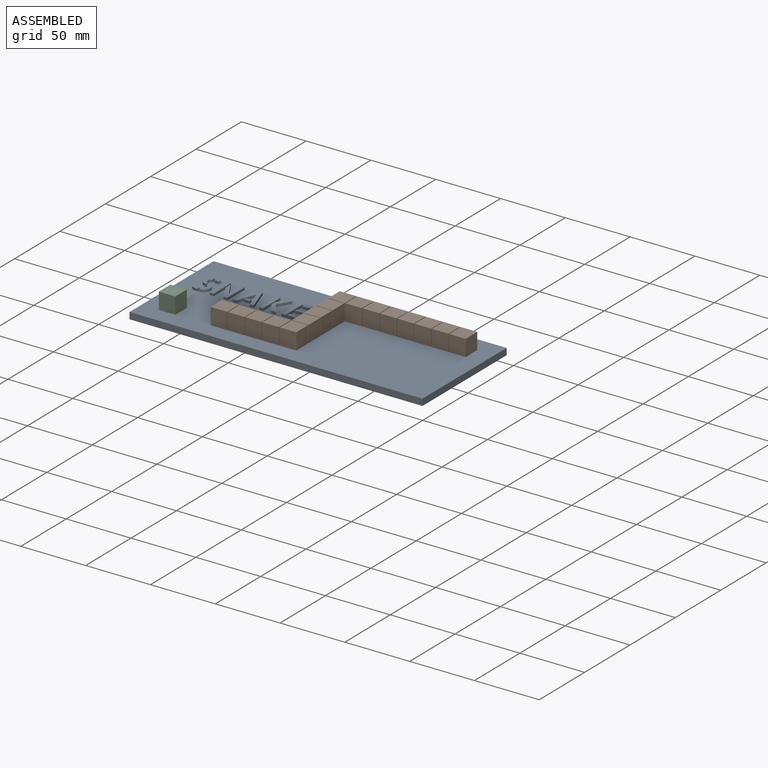
[diagram: assembled view]
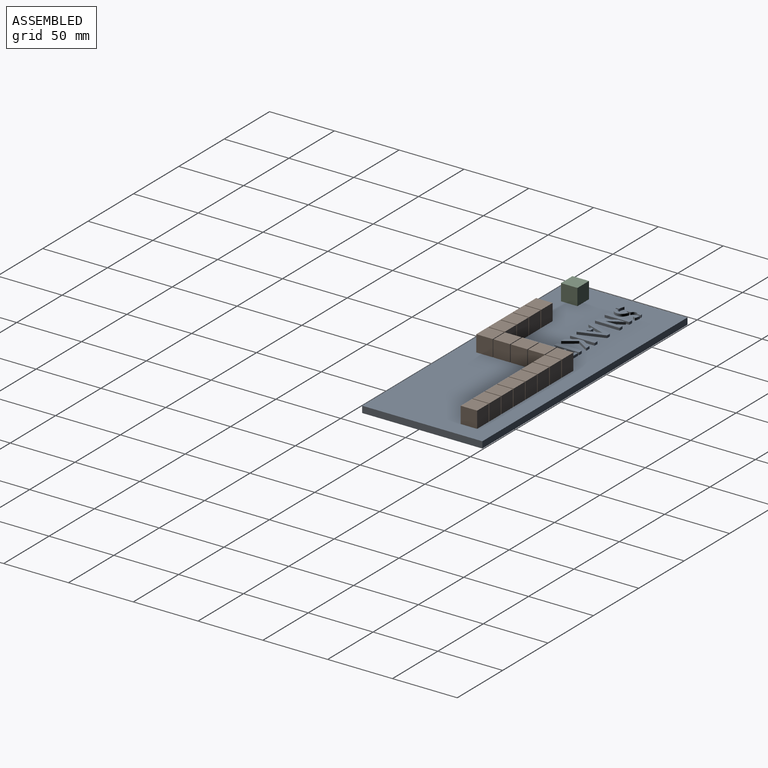
[diagram: assembled view, second angle]
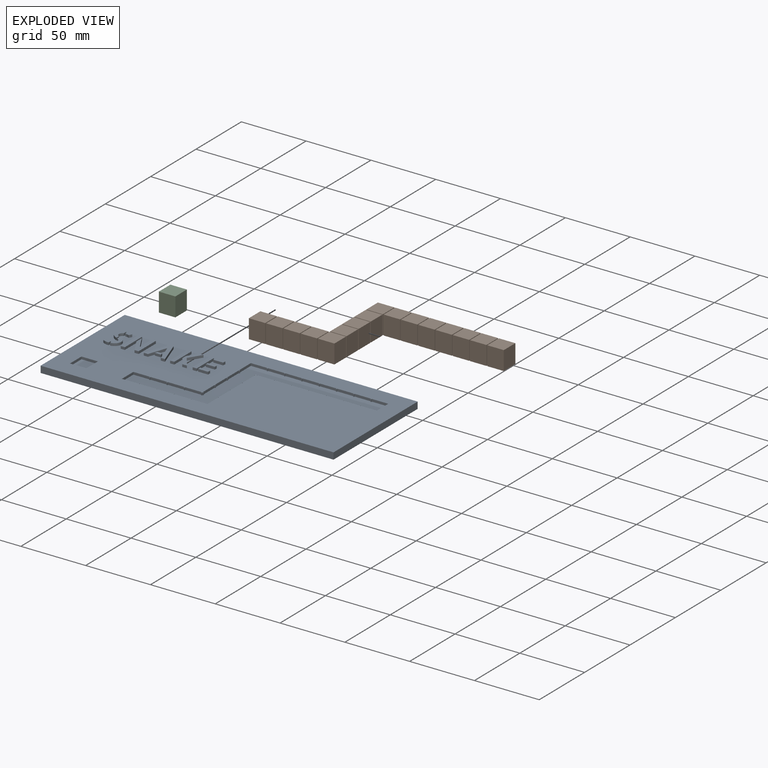
[diagram: exploded view]
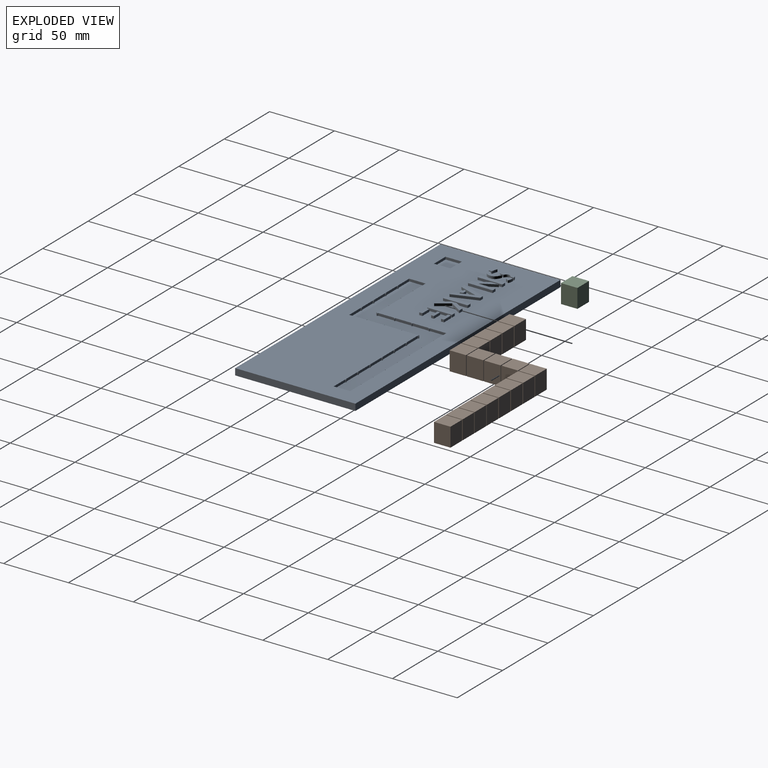
[diagram: exploded view, second angle]
ASSEMBLY  parts=3 mates=7
PART A: 249 faces, bbox 226.1x92.7x7 mm
  f0: plane 226.06x92.71mm, normal (0,0,1), area 17506.9mm2, adj f1,f2,f3,f4,f6,f7,f8,f9
  f1: plane 226.06x5.08mm, normal (0,1,0), area 1148.4mm2, adj f0,f2,f4,f5
  f2: plane 92.71x5.08mm, normal (-1,0,0), area 471mm2, adj f0,f1,f3,f5
  f3: plane 226.06x5.08mm, normal (0,-1,0), area 1148.4mm2, adj f0,f2,f4,f5
  f4: plane 92.71x5.08mm, normal (1,0,0), area 471mm2, adj f0,f1,f3,f5
  f5: plane 226.06x92.71mm, normal (0,0,-1), area 20958mm2, adj f1,f2,f3,f4
  f6: plane 1.91x0.64mm, normal (-1,0,0), area 1.2mm2, adj f0,f7,f129,f130
  f7: plane 1.91x0.64mm, normal (0,1,0), area 1.2mm2, adj f0,f6,f8,f130
  f8: plane 1.91x0.64mm, normal (1,0,0), area 1.2mm2, adj f0,f7,f9,f130
  f9: plane 12.7x1.91mm, normal (0,1,0), area 24.2mm2, adj f0,f8,f10,f130
  f10: plane 12.7x1.91mm, normal (-1,0,0), area 24.2mm2, adj f0,f9,f11,f130
  f11: plane 1.91x0.64mm, normal (0,-1,0), area 1.2mm2, adj f0,f10,f12,f130
  f12: plane 1.91x0.64mm, normal (-1,0,0), area 1.2mm2, adj f0,f11,f13,f130
  f13: plane 1.91x0.64mm, normal (0,1,0), area 1.2mm2, adj f0,f12,f14,f130
  f14: plane 12.7x1.91mm, normal (-1,0,0), area 24.2mm2, adj f0,f13,f15,f130
  f15: plane 1.91x0.64mm, normal (0,-1,0), area 1.2mm2, adj f0,f14,f16,f130
  f16: plane 1.91x0.64mm, normal (-1,0,0), area 1.2mm2, adj f0,f15,f17,f130
  f17: plane 1.91x0.64mm, normal (0,1,0), area 1.2mm2, adj f0,f16,f18,f130
  f18: plane 12.7x1.91mm, normal (-1,0,0), area 24.2mm2, adj f0,f17,f19,f130
  f19: plane 1.91x0.64mm, normal (0,-1,0), area 1.2mm2, adj f0,f18,f20,f130
  f20: plane 1.91x0.64mm, normal (-1,0,0), area 1.2mm2, adj f0,f19,f21,f130
  f21: plane 1.91x0.64mm, normal (0,1,0), area 1.2mm2, adj f0,f20,f22,f130
  f22: plane 12.7x1.91mm, normal (-1,0,0), area 24.2mm2, adj f0,f21,f23,f130
  f23: plane 1.91x0.64mm, normal (0,-1,0), area 1.2mm2, adj f0,f22,f24,f130
  f24: plane 1.91x0.64mm, normal (-1,0,0), area 1.2mm2, adj f0,f23,f25,f130
  f25: plane 1.91x0.64mm, normal (0,1,0), area 1.2mm2, adj f0,f24,f26,f130
  f26: plane 1.91x0.64mm, normal (-1,0,0), area 1.2mm2, adj f0,f25,f27,f130
  f27: plane 1.91x0.64mm, normal (0,1,0), area 1.2mm2, adj f0,f26,f28,f130
  f28: plane 1.91x0.64mm, normal (1,0,0), area 1.2mm2, adj f0,f27,f29,f130
  f29: plane 12.7x1.91mm, normal (0,1,0), area 24.2mm2, adj f0,f28,f30,f130
  f30: plane 1.91x0.64mm, normal (-1,0,0), area 1.2mm2, adj f0,f29,f31,f130
  f31: plane 1.91x0.64mm, normal (0,1,0), area 1.2mm2, adj f0,f30,f32,f130
  f32: plane 1.91x0.64mm, normal (1,0,0), area 1.2mm2, adj f0,f31,f33,f130
  f33: plane 12.7x1.91mm, normal (0,1,0), area 24.2mm2, adj f0,f32,f34,f130
  f34: plane 1.91x0.64mm, normal (-1,0,0), area 1.2mm2, adj f0,f33,f35,f130
  f35: plane 1.91x0.64mm, normal (0,1,0), area 1.2mm2, adj f0,f34,f36,f130
  f36: plane 1.91x0.64mm, normal (1,0,0), area 1.2mm2, adj f0,f35,f37,f130
  f37: plane 12.7x1.91mm, normal (0,1,0), area 24.2mm2, adj f0,f36,f38,f130
  f38: plane 1.91x0.64mm, normal (-1,0,0), area 1.2mm2, adj f0,f37,f39,f130
  f39: plane 1.91x0.64mm, normal (0,1,0), area 1.2mm2, adj f0,f38,f40,f130
  f40: plane 1.91x0.64mm, normal (1,0,0), area 1.2mm2, adj f0,f39,f41,f130
  f41: plane 12.7x1.91mm, normal (0,1,0), area 24.2mm2, adj f0,f40,f42,f130
  f42: plane 1.91x0.64mm, normal (-1,0,0), area 1.2mm2, adj f0,f41,f43,f130
  f43: plane 1.91x0.64mm, normal (0,1,0), area 1.2mm2, adj f0,f42,f44,f130
  f44: plane 1.91x0.64mm, normal (1,0,0), area 1.2mm2, adj f0,f43,f45,f130
  f45: plane 12.7x1.91mm, normal (0,1,0), area 24.2mm2, adj f0,f44,f46,f130
  f46: plane 1.91x0.64mm, normal (-1,0,0), area 1.2mm2, adj f0,f45,f47,f130
  f47: plane 1.91x0.64mm, normal (0,1,0), area 1.2mm2, adj f0,f46,f48,f130
  f48: plane 1.91x0.64mm, normal (1,0,0), area 1.2mm2, adj f0,f47,f49,f130
  f49: plane 12.7x1.91mm, normal (0,1,0), area 24.2mm2, adj f0,f48,f50,f130
  f50: plane 1.91x0.64mm, normal (-1,0,0), area 1.2mm2, adj f0,f49,f51,f130
  f51: plane 1.91x0.64mm, normal (0,1,0), area 1.2mm2, adj f0,f50,f52,f130
  f52: plane 1.91x0.64mm, normal (1,0,0), area 1.2mm2, adj f0,f51,f53,f130
  f53: plane 12.7x1.91mm, normal (0,1,0), area 24.2mm2, adj f0,f52,f54,f130
  f54: plane 12.7x1.91mm, normal (-1,0,0), area 24.2mm2, adj f0,f53,f55,f130
  f55: plane 12.7x1.91mm, normal (0,-1,0), area 24.2mm2, adj f0,f54,f56,f130
  f56: plane 1.91x0.64mm, normal (1,0,0), area 1.2mm2, adj f0,f55,f57,f130
  f57: plane 1.91x0.64mm, normal (0,-1,0), area 1.2mm2, adj f0,f56,f58,f130
  f58: plane 1.91x0.64mm, normal (-1,0,0), area 1.2mm2, adj f0,f57,f59,f130
  f59: plane 12.7x1.91mm, normal (0,-1,0), area 24.2mm2, adj f0,f58,f60,f130
  f60: plane 1.91x0.64mm, normal (1,0,0), area 1.2mm2, adj f0,f59,f61,f130
  f61: plane 1.91x0.64mm, normal (0,-1,0), area 1.2mm2, adj f0,f60,f62,f130
  f62: plane 1.91x0.64mm, normal (-1,0,0), area 1.2mm2, adj f0,f61,f63,f130
  f63: plane 12.7x1.91mm, normal (0,-1,0), area 24.2mm2, adj f0,f62,f64,f130
  f64: plane 1.91x0.64mm, normal (1,0,0), area 1.2mm2, adj f0,f63,f65,f130
  f65: plane 1.91x0.64mm, normal (0,-1,0), area 1.2mm2, adj f0,f64,f66,f130
  f66: plane 1.91x0.64mm, normal (-1,0,0), area 1.2mm2, adj f0,f65,f67,f130
  f67: plane 12.7x1.91mm, normal (0,-1,0), area 24.2mm2, adj f0,f66,f68,f130
  f68: plane 1.91x0.64mm, normal (1,0,0), area 1.2mm2, adj f0,f67,f69,f130
  f69: plane 1.91x0.64mm, normal (0,-1,0), area 1.2mm2, adj f0,f68,f70,f130
  f70: plane 1.91x0.64mm, normal (-1,0,0), area 1.2mm2, adj f0,f69,f71,f130
  f71: plane 12.7x1.91mm, normal (0,-1,0), area 24.2mm2, adj f0,f70,f72,f130
  f72: plane 1.91x0.64mm, normal (1,0,0), area 1.2mm2, adj f0,f71,f73,f130
  f73: plane 1.91x0.64mm, normal (0,-1,0), area 1.2mm2, adj f0,f72,f74,f130
  f74: plane 1.91x0.64mm, normal (-1,0,0), area 1.2mm2, adj f0,f73,f75,f130
  f75: plane 12.7x1.91mm, normal (0,-1,0), area 24.2mm2, adj f0,f74,f76,f130
  f76: plane 1.91x0.64mm, normal (1,0,0), area 1.2mm2, adj f0,f75,f77,f130
  f77: plane 1.91x0.64mm, normal (0,-1,0), area 1.2mm2, adj f0,f76,f78,f130
  f78: plane 1.91x0.64mm, normal (-1,0,0), area 1.2mm2, adj f0,f77,f79,f130
  f79: plane 12.7x1.91mm, normal (0,-1,0), area 24.2mm2, adj f0,f78,f80,f130
  f80: plane 1.91x0.64mm, normal (1,0,0), area 1.2mm2, adj f0,f79,f81,f130
  f81: plane 1.91x0.64mm, normal (0,-1,0), area 1.2mm2, adj f0,f80,f82,f130
  f82: plane 1.91x0.64mm, normal (-1,0,0), area 1.2mm2, adj f0,f81,f83,f130
  f83: plane 12.7x1.91mm, normal (0,-1,0), area 24.2mm2, adj f0,f82,f84,f130
  f84: plane 12.7x1.91mm, normal (1,0,0), area 24.2mm2, adj f0,f83,f85,f130
  f85: plane 1.91x0.64mm, normal (0,1,0), area 1.2mm2, adj f0,f84,f86,f130
  f86: plane 1.91x0.64mm, normal (1,0,0), area 1.2mm2, adj f0,f85,f87,f130
  f87: plane 1.91x0.64mm, normal (0,-1,0), area 1.2mm2, adj f0,f86,f88,f130
  f88: plane 12.7x1.91mm, normal (1,0,0), area 24.2mm2, adj f0,f87,f89,f130
  f89: plane 1.91x0.64mm, normal (0,1,0), area 1.2mm2, adj f0,f88,f90,f130
  f90: plane 1.91x0.64mm, normal (1,0,0), area 1.2mm2, adj f0,f89,f91,f130
  f91: plane 1.91x0.64mm, normal (0,-1,0), area 1.2mm2, adj f0,f90,f92,f130
  f92: plane 12.7x1.91mm, normal (1,0,0), area 24.2mm2, adj f0,f91,f93,f130
  f93: plane 1.91x0.64mm, normal (0,1,0), area 1.2mm2, adj f0,f92,f94,f130
  f94: plane 1.91x0.64mm, normal (1,0,0), area 1.2mm2, adj f0,f93,f95,f130
  f95: plane 1.91x0.64mm, normal (0,-1,0), area 1.2mm2, adj f0,f94,f96,f130
  f96: plane 12.7x1.91mm, normal (1,0,0), area 24.2mm2, adj f0,f95,f97,f130
  f97: plane 1.91x0.64mm, normal (0,1,0), area 1.2mm2, adj f0,f96,f98,f130
  f98: plane 1.91x0.64mm, normal (1,0,0), area 1.2mm2, adj f0,f97,f99,f130
  f99: plane 1.91x0.64mm, normal (0,-1,0), area 1.2mm2, adj f0,f98,f100,f130
  f100: plane 1.91x0.64mm, normal (1,0,0), area 1.2mm2, adj f0,f99,f101,f130
  f101: plane 1.91x0.64mm, normal (0,-1,0), area 1.2mm2, adj f0,f100,f102,f130
  f102: plane 1.91x0.64mm, normal (-1,0,0), area 1.2mm2, adj f0,f101,f103,f130
  f103: plane 12.7x1.91mm, normal (0,-1,0), area 24.2mm2, adj f0,f102,f104,f130
  f104: plane 1.91x0.64mm, normal (1,0,0), area 1.2mm2, adj f0,f103,f105,f130
  f105: plane 1.91x0.64mm, normal (0,-1,0), area 1.2mm2, adj f0,f104,f106,f130
  f106: plane 1.91x0.64mm, normal (-1,0,0), area 1.2mm2, adj f0,f105,f107,f130
  f107: plane 12.7x1.91mm, normal (0,-1,0), area 24.2mm2, adj f0,f106,f108,f130
  f108: plane 1.91x0.64mm, normal (1,0,0), area 1.2mm2, adj f0,f107,f109,f130
  f109: plane 1.91x0.64mm, normal (0,-1,0), area 1.2mm2, adj f0,f108,f110,f130
  f110: plane 1.91x0.64mm, normal (-1,0,0), area 1.2mm2, adj f0,f109,f111,f130
  f111: plane 12.7x1.91mm, normal (0,-1,0), area 24.2mm2, adj f0,f110,f112,f130
  f112: plane 1.91x0.64mm, normal (1,0,0), area 1.2mm2, adj f0,f111,f113,f130
  f113: plane 1.91x0.64mm, normal (0,-1,0), area 1.2mm2, adj f0,f112,f114,f130
  f114: plane 1.91x0.64mm, normal (-1,0,0), area 1.2mm2, adj f0,f113,f115,f130
  f115: plane 12.7x1.91mm, normal (0,-1,0), area 24.2mm2, adj f0,f114,f116,f130
  f116: plane 12.7x1.91mm, normal (1,0,0), area 24.2mm2, adj f0,f115,f117,f130
  f117: plane 12.7x1.91mm, normal (0,1,0), area 24.2mm2, adj f0,f116,f118,f130
  f118: plane 1.91x0.64mm, normal (-1,0,0), area 1.2mm2, adj f0,f117,f119,f130
  f119: plane 1.91x0.64mm, normal (0,1,0), area 1.2mm2, adj f0,f118,f120,f130
  f120: plane 1.91x0.64mm, normal (1,0,0), area 1.2mm2, adj f0,f119,f121,f130
  f121: plane 12.7x1.91mm, normal (0,1,0), area 24.2mm2, adj f0,f120,f122,f130
  f122: plane 1.91x0.64mm, normal (-1,0,0), area 1.2mm2, adj f0,f121,f123,f130
  f123: plane 1.91x0.64mm, normal (0,1,0), area 1.2mm2, adj f0,f122,f124,f130
  f124: plane 1.91x0.64mm, normal (1,0,0), area 1.2mm2, adj f0,f123,f125,f130
  f125: plane 12.7x1.91mm, normal (0,1,0), area 24.2mm2, adj f0,f124,f126,f130
  f126: plane 1.91x0.64mm, normal (-1,0,0), area 1.2mm2, adj f0,f125,f127,f130
  f127: plane 1.91x0.64mm, normal (0,1,0), area 1.2mm2, adj f0,f126,f128,f130
  f128: plane 1.91x0.64mm, normal (1,0,0), area 1.2mm2, adj f0,f127,f129,f130
  f129: plane 12.7x1.91mm, normal (0,1,0), area 24.2mm2, adj f0,f6,f128,f130
  f130: plane 159.39x66.04mm, normal (0,0,1), area 2689.5mm2, adj f6,f7,f8,f9,f10,f11,f12,f13
  f131: plane 12.7x1.91mm, normal (0,1,0), area 24.2mm2, adj f0,f132,f134,f135
  f132: plane 12.7x1.91mm, normal (-1,0,0), area 24.2mm2, adj f0,f131,f133,f135
  f133: plane 12.7x1.91mm, normal (0,-1,0), area 24.2mm2, adj f0,f132,f134,f135
  f134: plane 12.7x1.91mm, normal (1,0,0), area 24.2mm2, adj f0,f131,f133,f135
  f135: plane 12.7x12.7mm, normal (0,0,1), area 161.3mm2, adj f131,f132,f133,f134
  f136: extruded ~1.91x0.26mm, area 0.6mm2, adj f0,f137,f146,f147
  f137: extruded ~1.91x0.58mm, area 1.3mm2, adj f0,f136,f138,f147
  f138: extruded ~1.91x0.75mm, area 1.6mm2, adj f0,f137,f139,f147
  f139: extruded ~1.91x0.74mm, area 1.6mm2, adj f0,f138,f140,f147
  f140: extruded ~1.91x1.9mm, area 3.9mm2, adj f0,f139,f141,f147
  f141: extruded ~2.31x1.91mm, area 4.4mm2, adj f0,f140,f142,f147
  f142: plane 2.61x1.91mm, normal (-1,0,0), area 5mm2, adj f0,f141,f143,f147
  f143: extruded ~1.91x1.32mm, area 2.5mm2, adj f0,f142,f144,f147
  f144: extruded ~1.91x0.85mm, area 1.7mm2, adj f0,f143,f145,f147
  f145: extruded ~1.91x0.52mm, area 1.1mm2, adj f0,f144,f146,f147
  f146: extruded ~1.91x0.31mm, area 0.7mm2, adj f0,f136,f145,f147
  f147: plane 4.21x3.25mm, normal (0,0,1), area 9.6mm2, adj f136,f137,f138,f139,f140,f141,f142,f143
  f148: extruded ~2.04x1.91mm, area 4mm2, adj f0,f149,f161,f162
  f149: extruded ~1.91x1.5mm, area 3.6mm2, adj f0,f148,f150,f162
  f150: extruded ~1.91x1.55mm, area 3.7mm2, adj f0,f149,f151,f162
  f151: extruded ~1.91x1.71mm, area 3.7mm2, adj f0,f150,f152,f162
  f152: plane 2.95x1.91mm, normal (1,0,0), area 5.6mm2, adj f0,f151,f153,f162
  f153: extruded ~1.91x1.37mm, area 3.3mm2, adj f0,f152,f154,f162
  f154: extruded ~1.91x1.63mm, area 3.3mm2, adj f0,f153,f155,f162
  f155: extruded ~1.91x1.43mm, area 3mm2, adj f0,f154,f156,f162
  f156: extruded ~1.91x1.37mm, area 3.3mm2, adj f0,f155,f157,f162
  f157: plane 2.72x1.91mm, normal (1,0,0), area 5.2mm2, adj f0,f156,f158,f162
  f158: extruded ~1.91x1.88mm, area 3.7mm2, adj f0,f157,f159,f162
  f159: extruded ~1.91x1.55mm, area 3.6mm2, adj f0,f158,f160,f162
  f160: extruded ~1.91x1.59mm, area 3.6mm2, adj f0,f159,f161,f162
  f161: extruded ~2.04x1.91mm, area 4mm2, adj f0,f148,f160,f162
  f162: plane 10.8x4.86mm, normal (0,0,1), area 31.8mm2, adj f148,f149,f150,f151,f152,f153,f154,f155
  f163: plane 2.22x1.91mm, normal (-0.97,0.24,0), area 4.4mm2, adj f0,f164,f174,f175
  f164: extruded ~1.91x1.05mm, area 2.4mm2, adj f0,f163,f165,f175
  f165: extruded ~1.91x1.28mm, area 2.6mm2, adj f0,f164,f166,f175
  f166: extruded ~1.91x1.33mm, area 2.6mm2, adj f0,f165,f167,f175
  f167: extruded ~1.91x1.28mm, area 2.4mm2, adj f0,f166,f168,f175
  f168: plane 1.91x0.05mm, normal (0,-1,0), area 0.1mm2, adj f0,f167,f169,f175
  f169: plane 2.46x1.91mm, normal (1,0,0), area 4.7mm2, adj f0,f168,f170,f175
  f170: plane 1.91x0.08mm, normal (0,1,0), area 0.1mm2, adj f0,f169,f171,f175
  f171: extruded ~1.91x1.11mm, area 2.1mm2, adj f0,f170,f172,f175
  f172: extruded ~1.91x1.19mm, area 2.3mm2, adj f0,f171,f173,f175
  f173: extruded ~1.91x1.15mm, area 2.3mm2, adj f0,f172,f174,f175
  f174: extruded ~1.91x0.92mm, area 1.9mm2, adj f0,f163,f173,f175
  f175: plane 4.99x3.59mm, normal (0,0,1), area 12.2mm2, adj f163,f164,f165,f166,f167,f168,f169,f170
  f176: plane 3.03x1.91mm, normal (-1,0,0), area 5.8mm2, adj f0,f177,f188,f189
  f177: extruded ~1.91x1.52mm, area 3.6mm2, adj f0,f176,f178,f189
  f178: extruded ~1.91x1.5mm, area 3.2mm2, adj f0,f177,f179,f189
  f179: extruded ~2.82x2.12mm, area 7.3mm2, adj f0,f178,f180,f189
  f180: plane 2.48x1.91mm, normal (-1,0,0), area 4.7mm2, adj f0,f179,f181,f189
  f181: extruded ~2.12x1.91mm, area 4.2mm2, adj f0,f180,f182,f189
  f182: extruded ~1.91x1.56mm, area 3.8mm2, adj f0,f181,f183,f189
  f183: extruded ~1.91x1.59mm, area 3.6mm2, adj f0,f182,f184,f189
  f184: extruded ~1.91x1.81mm, area 3.5mm2, adj f0,f183,f185,f189
  f185: extruded ~2.25x1.91mm, area 4.4mm2, adj f0,f184,f186,f189
  f186: extruded ~1.91x1.54mm, area 3.7mm2, adj f0,f185,f187,f189
  f187: extruded ~1.91x1.61mm, area 3.7mm2, adj f0,f186,f188,f189
  f188: extruded ~1.91x1.74mm, area 3.7mm2, adj f0,f176,f187,f189
  f189: plane 10.93x5.01mm, normal (0,0,1), area 32.3mm2, adj f176,f177,f178,f179,f180,f181,f182,f183
  f190: plane 13.13x1.91mm, normal (-1,0,0), area 25mm2, adj f0,f191,f196,f197
  f191: plane 11.29x6.41mm, normal (0.87,0.49,0), area 24.7mm2, adj f0,f190,f192,f197
  f192: plane 5.95x1.91mm, normal (-1,0,0), area 11.3mm2, adj f0,f191,f193,f197
  f193: plane 11.27x6.41mm, normal (-0.87,-0.49,0), area 24.7mm2, adj f0,f192,f194,f197
  f194: plane 3.15x1.91mm, normal (0,-1,0), area 6mm2, adj f0,f193,f195,f197
  f195: plane 19.04x1.91mm, normal (1,0,0), area 36.3mm2, adj f0,f194,f196,f197
  f196: plane 3.15x1.91mm, normal (0,1,0), area 6mm2, adj f0,f190,f195,f197
  f197: plane 19.04x9.56mm, normal (0,0,1), area 98mm2, adj f190,f191,f192,f193,f194,f195,f196
  f198: plane 3.15x1.91mm, normal (0,-1,0), area 6mm2, adj f0,f199,f201,f202
  f199: plane 19.04x1.91mm, normal (1,0,0), area 36.3mm2, adj f0,f198,f200,f202
  f200: plane 3.15x1.91mm, normal (0,1,0), area 6mm2, adj f0,f199,f201,f202
  f201: plane 19.04x1.91mm, normal (-1,0,0), area 36.3mm2, adj f0,f198,f200,f202
  f202: plane 19.04x3.15mm, normal (0,0,1), area 60.1mm2, adj f198,f199,f200,f201
  f203: plane 19.02x6.61mm, normal (0.94,0.33,0), area 38.4mm2, adj f0,f204,f209,f210
  f204: plane 3.08x1.91mm, normal (0,1,0), area 5.9mm2, adj f0,f203,f205,f210
  f205: plane 19.02x6.66mm, normal (-0.94,0.33,0), area 38.4mm2, adj f0,f204,f206,f210
  f206: plane 3.23x1.91mm, normal (0,-1,0), area 6.2mm2, adj f0,f205,f207,f210
  f207: plane 14.26x4.99mm, normal (0.94,-0.33,0), area 28.8mm2, adj f0,f206,f208,f210
  f208: plane 14.26x4.94mm, normal (-0.95,-0.33,0), area 28.8mm2, adj f0,f207,f209,f210
  f209: plane 3.2x1.91mm, normal (0,-1,0), area 6.1mm2, adj f0,f203,f208,f210
  f210: plane 19.02x16.35mm, normal (0,0,1), area 114mm2, adj f203,f204,f205,f206,f207,f208,f209
  f211: plane 3.46x1.91mm, normal (0,1,0), area 6.6mm2, adj f0,f212,f214,f215
  f212: plane 2.1x1.91mm, normal (-0.95,0.33,0), area 4.2mm2, adj f0,f211,f213,f215
  f213: plane 4.94x1.91mm, normal (0,-1,0), area 9.4mm2, adj f0,f212,f214,f215
  f214: plane 2.1x1.91mm, normal (0.94,0.34,0), area 4.2mm2, adj f0,f211,f213,f215
  f215: plane 4.94x2.1mm, normal (0,0,1), area 8.8mm2, adj f211,f212,f213,f214
  f216: plane 3.15x1.91mm, normal (0,-1,0), area 6mm2, adj f0,f217,f219,f220
  f217: plane 19.04x1.91mm, normal (1,0,0), area 36.3mm2, adj f0,f216,f218,f220
  f218: plane 3.15x1.91mm, normal (0,1,0), area 6mm2, adj f0,f217,f219,f220
  f219: plane 19.04x1.91mm, normal (-1,0,0), area 36.3mm2, adj f0,f216,f218,f220
  f220: plane 19.04x3.15mm, normal (0,0,1), area 60.1mm2, adj f216,f217,f218,f219
  f221: plane 9.79x6.1mm, normal (0.85,-0.53,0), area 22mm2, adj f0,f222,f227,f228
  f222: plane 3.54x1.91mm, normal (0,1,0), area 6.7mm2, adj f0,f221,f223,f228
  f223: plane 7.78x4.63mm, normal (-0.86,0.51,0), area 17.2mm2, adj f0,f222,f224,f228
  f224: plane 3.77x1.91mm, normal (-1,0,0), area 7.2mm2, adj f0,f223,f225,f228
  f225: plane 7.5x5.09mm, normal (-0.83,-0.56,0), area 17.3mm2, adj f0,f224,f226,f228
  f226: plane 3.59x1.91mm, normal (0,-1,0), area 6.8mm2, adj f0,f225,f227,f228
  f227: plane 9.25x6.61mm, normal (0.81,0.58,0), area 21.7mm2, adj f0,f221,f226,f228
  f228: plane 19.04x8.68mm, normal (0,0,1), area 62.7mm2, adj f221,f222,f223,f224,f225,f226,f227
  f229: plane 19.04x1.91mm, normal (-1,0,0), area 36.3mm2, adj f0,f230,f232,f233
  f230: plane 3.15x1.91mm, normal (0,-1,0), area 6mm2, adj f0,f229,f231,f233
  f231: plane 19.04x1.91mm, normal (1,0,0), area 36.3mm2, adj f0,f230,f232,f233
  f232: plane 3.15x1.91mm, normal (0,1,0), area 6mm2, adj f0,f229,f231,f233
  f233: plane 19.04x3.15mm, normal (0,0,1), area 60mm2, adj f229,f230,f231,f232
  f234: plane 2.12x1.91mm, normal (1,0,0), area 4mm2, adj f0,f235,f237,f238
  f235: plane 6.9x1.91mm, normal (0,1,0), area 13.1mm2, adj f0,f234,f236,f238
  f236: plane 2.12x1.91mm, normal (-1,0,0), area 4mm2, adj f0,f235,f237,f238
  f237: plane 6.9x1.91mm, normal (0,-1,0), area 13.1mm2, adj f0,f234,f236,f238
  f238: plane 6.9x2.12mm, normal (0,0,1), area 14.6mm2, adj f234,f235,f236,f237
  f239: plane 2.35x1.91mm, normal (-1,0,0), area 4.5mm2, adj f0,f240,f242,f243
  f240: plane 7.7x1.91mm, normal (0,-1,0), area 14.7mm2, adj f0,f239,f241,f243
  f241: plane 2.35x1.91mm, normal (1,0,0), area 4.5mm2, adj f0,f240,f242,f243
  f242: plane 7.7x1.91mm, normal (0,1,0), area 14.7mm2, adj f0,f239,f241,f243
  f243: plane 7.7x2.35mm, normal (0,0,1), area 18.1mm2, adj f239,f240,f241,f242
  f244: plane 7.7x1.91mm, normal (0,1,0), area 14.7mm2, adj f0,f245,f247,f248
  f245: plane 2.35x1.91mm, normal (-1,0,0), area 4.5mm2, adj f0,f244,f246,f248
  f246: plane 7.7x1.91mm, normal (0,-1,0), area 14.7mm2, adj f0,f245,f247,f248
  f247: plane 2.35x1.91mm, normal (1,0,0), area 4.5mm2, adj f0,f244,f246,f248
  f248: plane 7.7x2.35mm, normal (0,0,1), area 18.1mm2, adj f244,f245,f246,f247
PART B: 126 faces, bbox 159.4x66x14.6 mm
  f0: plane 14.61x12.7mm, normal (1,0,0), area 25.8mm2, adj f1,f78,f79,f93,f94,f120,f122
  f1: plane 13.97x0.64mm, normal (0,-1,0), area 8.9mm2, adj f0,f2,f94,f120
  f2: plane 14.61x12.7mm, normal (-1,0,0), area 25.8mm2, adj f1,f3,f77,f78,f94,f120,f124
  f3: plane 14.61x12.7mm, normal (0,-1,0), area 185.5mm2, adj f2,f4,f94,f124
  f4: plane 14.61x12.7mm, normal (1,0,0), area 25.8mm2, adj f3,f5,f76,f77,f94,f105,f124
  f5: plane 13.97x0.64mm, normal (0,-1,0), area 8.9mm2, adj f4,f6,f94,f105
  f6: plane 14.61x12.7mm, normal (-1,0,0), area 25.8mm2, adj f5,f7,f9,f76,f94,f105,f118
  f7: plane 14.61x12.7mm, normal (0,-1,0), area 185.5mm2, adj f6,f8,f94,f118
  f8: plane 14.61x12.7mm, normal (1,0,0), area 185.5mm2, adj f7,f9,f94,f118
  f9: plane 14.61x12.7mm, normal (0,1,0), area 25.8mm2, adj f6,f8,f10,f75,f94,f106,f118
  f10: plane 13.97x0.64mm, normal (1,0,0), area 8.9mm2, adj f9,f11,f94,f106
  f11: plane 14.61x12.7mm, normal (0,-1,0), area 25.8mm2, adj f10,f12,f74,f75,f94,f106,f117
  f12: plane 14.61x12.7mm, normal (1,0,0), area 185.5mm2, adj f11,f13,f94,f117
  f13: plane 14.61x12.7mm, normal (0,1,0), area 25.8mm2, adj f12,f14,f73,f74,f94,f107,f117
  f14: plane 13.97x0.64mm, normal (1,0,0), area 8.9mm2, adj f13,f15,f94,f107
  f15: plane 14.61x12.7mm, normal (0,-1,0), area 25.8mm2, adj f14,f16,f72,f73,f94,f107,f113
  f16: plane 14.61x12.7mm, normal (1,0,0), area 185.5mm2, adj f15,f17,f94,f113
  f17: plane 14.61x12.7mm, normal (0,1,0), area 25.8mm2, adj f16,f18,f71,f72,f94,f113,f114
  f18: plane 13.97x0.64mm, normal (1,0,0), area 8.9mm2, adj f17,f19,f94,f114
  f19: plane 14.61x12.7mm, normal (0,-1,0), area 25.8mm2, adj f18,f20,f70,f71,f94,f112,f114
  f20: plane 14.61x12.7mm, normal (1,0,0), area 185.5mm2, adj f19,f69,f94,f112
  f21: plane 13.97x0.64mm, normal (1,0,0), area 8.9mm2, adj f22,f69,f94,f115
  f22: plane 14.61x12.7mm, normal (0,-1,0), area 25.8mm2, adj f21,f23,f67,f68,f94,f111,f115
  f23: plane 14.61x12.7mm, normal (1,0,0), area 25.8mm2, adj f22,f24,f65,f66,f94,f110,f111
  f24: plane 13.97x0.64mm, normal (0,-1,0), area 8.9mm2, adj f23,f25,f94,f110
  f25: plane 14.61x12.7mm, normal (-1,0,0), area 25.8mm2, adj f24,f26,f64,f65,f94,f109,f110
  f26: plane 14.61x12.7mm, normal (0,-1,0), area 185.5mm2, adj f25,f27,f94,f109
  f27: plane 14.61x12.7mm, normal (1,0,0), area 25.8mm2, adj f26,f28,f63,f64,f94,f108,f109
  f28: plane 13.97x0.64mm, normal (0,-1,0), area 8.9mm2, adj f27,f29,f94,f108
  f29: plane 14.61x12.7mm, normal (-1,0,0), area 25.8mm2, adj f28,f30,f62,f63,f94,f108,f116
  f30: plane 14.61x12.7mm, normal (0,-1,0), area 185.5mm2, adj f29,f31,f94,f116
  f31: plane 14.61x12.7mm, normal (1,0,0), area 25.8mm2, adj f30,f32,f61,f62,f94,f95,f116
  f32: plane 13.97x0.64mm, normal (0,-1,0), area 8.9mm2, adj f31,f33,f94,f95
  f33: plane 14.61x12.7mm, normal (-1,0,0), area 25.8mm2, adj f32,f34,f60,f61,f94,f95,f102
  f34: plane 14.61x12.7mm, normal (0,-1,0), area 185.5mm2, adj f33,f35,f94,f102
  f35: plane 14.61x12.7mm, normal (1,0,0), area 25.8mm2, adj f34,f36,f59,f60,f94,f102,f103
  f36: plane 13.97x0.64mm, normal (0,-1,0), area 8.9mm2, adj f35,f37,f94,f103
  f37: plane 14.61x12.7mm, normal (-1,0,0), area 25.8mm2, adj f36,f38,f58,f59,f94,f103,f104
  f38: plane 14.61x12.7mm, normal (0,-1,0), area 185.5mm2, adj f37,f39,f94,f104
  f39: plane 14.61x12.7mm, normal (1,0,0), area 25.8mm2, adj f38,f40,f57,f58,f94,f96,f104
  f40: plane 13.97x0.64mm, normal (0,-1,0), area 8.9mm2, adj f39,f41,f94,f96
  f41: plane 14.61x12.7mm, normal (-1,0,0), area 25.8mm2, adj f40,f42,f56,f57,f94,f96,f100
  f42: plane 14.61x12.7mm, normal (0,-1,0), area 185.5mm2, adj f41,f43,f94,f100
  f43: plane 14.61x12.7mm, normal (1,0,0), area 25.8mm2, adj f42,f44,f55,f56,f94,f98,f100
  f44: plane 13.97x0.64mm, normal (0,-1,0), area 8.9mm2, adj f43,f45,f94,f98
  f45: plane 14.61x12.7mm, normal (-1,0,0), area 25.8mm2, adj f44,f46,f54,f55,f94,f98,f99
  f46: plane 14.61x12.7mm, normal (0,-1,0), area 185.5mm2, adj f45,f47,f94,f99
  f47: plane 14.61x12.7mm, normal (1,0,0), area 25.8mm2, adj f46,f48,f53,f54,f94,f97,f99
  f48: plane 13.97x0.64mm, normal (0,-1,0), area 8.9mm2, adj f47,f49,f94,f97
  f49: plane 14.61x12.7mm, normal (-1,0,0), area 25.8mm2, adj f48,f50,f52,f53,f94,f97,f101
  f50: plane 14.61x12.7mm, normal (0,-1,0), area 185.5mm2, adj f49,f51,f94,f101
  f51: plane 14.61x12.7mm, normal (1,0,0), area 185.5mm2, adj f50,f52,f94,f101
  f52: plane 14.61x12.7mm, normal (0,1,0), area 185.5mm2, adj f49,f51,f94,f101
  f53: plane 13.97x0.64mm, normal (0,1,0), area 8.9mm2, adj f47,f49,f94,f97
  f54: plane 14.61x12.7mm, normal (0,1,0), area 185.5mm2, adj f45,f47,f94,f99
  f55: plane 13.97x0.64mm, normal (0,1,0), area 8.9mm2, adj f43,f45,f94,f98
  f56: plane 14.61x12.7mm, normal (0,1,0), area 185.5mm2, adj f41,f43,f94,f100
  f57: plane 13.97x0.64mm, normal (0,1,0), area 8.9mm2, adj f39,f41,f94,f96
  f58: plane 14.61x12.7mm, normal (0,1,0), area 185.5mm2, adj f37,f39,f94,f104
  f59: plane 13.97x0.64mm, normal (0,1,0), area 8.9mm2, adj f35,f37,f94,f103
  f60: plane 14.61x12.7mm, normal (0,1,0), area 185.5mm2, adj f33,f35,f94,f102
  f61: plane 13.97x0.64mm, normal (0,1,0), area 8.9mm2, adj f31,f33,f94,f95
  f62: plane 14.61x12.7mm, normal (0,1,0), area 185.5mm2, adj f29,f31,f94,f116
  f63: plane 13.97x0.64mm, normal (0,1,0), area 8.9mm2, adj f27,f29,f94,f108
  f64: plane 14.61x12.7mm, normal (0,1,0), area 185.5mm2, adj f25,f27,f94,f109
  f65: plane 13.97x0.64mm, normal (0,1,0), area 8.9mm2, adj f23,f25,f94,f110
  f66: plane 14.61x12.7mm, normal (0,1,0), area 185.5mm2, adj f23,f67,f94,f111
  f67: plane 14.61x12.7mm, normal (-1,0,0), area 185.5mm2, adj f22,f66,f94,f111
  f68: plane 13.97x0.64mm, normal (-1,0,0), area 8.9mm2, adj f22,f69,f94,f115
  f69: plane 14.61x12.7mm, normal (0,1,0), area 25.8mm2, adj f20,f21,f68,f70,f94,f112,f115
  f70: plane 14.61x12.7mm, normal (-1,0,0), area 185.5mm2, adj f19,f69,f94,f112
  f71: plane 13.97x0.64mm, normal (-1,0,0), area 8.9mm2, adj f17,f19,f94,f114
  f72: plane 14.61x12.7mm, normal (-1,0,0), area 185.5mm2, adj f15,f17,f94,f113
  f73: plane 13.97x0.64mm, normal (-1,0,0), area 8.9mm2, adj f13,f15,f94,f107
  f74: plane 14.61x12.7mm, normal (-1,0,0), area 185.5mm2, adj f11,f13,f94,f117
  f75: plane 13.97x0.64mm, normal (-1,0,0), area 8.9mm2, adj f9,f11,f94,f106
  f76: plane 13.97x0.64mm, normal (0,1,0), area 8.9mm2, adj f4,f6,f94,f105
  f77: plane 14.61x12.7mm, normal (0,1,0), area 185.5mm2, adj f2,f4,f94,f124
  f78: plane 13.97x0.64mm, normal (0,1,0), area 8.9mm2, adj f0,f2,f94,f120
  f79: plane 14.61x12.7mm, normal (0,1,0), area 185.5mm2, adj f0,f92,f94,f122
  f80: plane 13.97x0.64mm, normal (0,1,0), area 8.9mm2, adj f90,f92,f94,f121
  f81: plane 14.61x12.7mm, normal (0,1,0), area 185.5mm2, adj f88,f90,f94,f123
  f82: plane 13.97x0.64mm, normal (0,1,0), area 8.9mm2, adj f86,f88,f94,f119
  f83: plane 14.61x12.7mm, normal (0,1,0), area 185.5mm2, adj f84,f86,f94,f125
  f84: plane 14.61x12.7mm, normal (-1,0,0), area 185.5mm2, adj f83,f85,f94,f125
  f85: plane 14.61x12.7mm, normal (0,-1,0), area 185.5mm2, adj f84,f86,f94,f125
  f86: plane 14.61x12.7mm, normal (1,0,0), area 25.8mm2, adj f82,f83,f85,f87,f94,f119,f125
  f87: plane 13.97x0.64mm, normal (0,-1,0), area 8.9mm2, adj f86,f88,f94,f119
  f88: plane 14.61x12.7mm, normal (-1,0,0), area 25.8mm2, adj f81,f82,f87,f89,f94,f119,f123
  f89: plane 14.61x12.7mm, normal (0,-1,0), area 185.5mm2, adj f88,f90,f94,f123
  f90: plane 14.61x12.7mm, normal (1,0,0), area 25.8mm2, adj f80,f81,f89,f91,f94,f121,f123
  f91: plane 13.97x0.64mm, normal (0,-1,0), area 8.9mm2, adj f90,f92,f94,f121
  f92: plane 14.61x12.7mm, normal (-1,0,0), area 25.8mm2, adj f79,f80,f91,f93,f94,f121,f122
  f93: plane 14.61x12.7mm, normal (0,-1,0), area 185.5mm2, adj f0,f92,f94,f122
  f94: plane 159.39x66.04mm, normal (0,0,-1), area 2689.5mm2, adj f0,f1,f2,f3,f4,f5,f6,f7
  f95: plane 11.43x0.64mm, normal (0,0,1), area 7.3mm2, adj f31,f32,f33,f61
  f96: plane 11.43x0.64mm, normal (0,0,1), area 7.3mm2, adj f39,f40,f41,f57
  f97: plane 11.43x0.64mm, normal (0,0,1), area 7.3mm2, adj f47,f48,f49,f53
  f98: plane 11.43x0.64mm, normal (0,0,1), area 7.3mm2, adj f43,f44,f45,f55
  f99: plane 12.7x12.7mm, normal (0,0,1), area 161.3mm2, adj f45,f46,f47,f54
  f100: plane 12.7x12.7mm, normal (0,0,1), area 161.3mm2, adj f41,f42,f43,f56
  f101: plane 12.7x12.7mm, normal (0,0,1), area 161.3mm2, adj f49,f50,f51,f52
  f102: plane 12.7x12.7mm, normal (0,0,1), area 161.3mm2, adj f33,f34,f35,f60
  f103: plane 11.43x0.64mm, normal (0,0,1), area 7.3mm2, adj f35,f36,f37,f59
  f104: plane 12.7x12.7mm, normal (0,0,1), area 161.3mm2, adj f37,f38,f39,f58
  f105: plane 11.43x0.64mm, normal (0,0,1), area 7.3mm2, adj f4,f5,f6,f76
  f106: plane 11.43x0.64mm, normal (0,0,1), area 7.3mm2, adj f9,f10,f11,f75
  f107: plane 11.43x0.64mm, normal (0,0,1), area 7.3mm2, adj f13,f14,f15,f73
  f108: plane 11.43x0.64mm, normal (0,0,1), area 7.3mm2, adj f27,f28,f29,f63
  f109: plane 12.7x12.7mm, normal (0,0,1), area 161.3mm2, adj f25,f26,f27,f64
  f110: plane 11.43x0.64mm, normal (0,0,1), area 7.3mm2, adj f23,f24,f25,f65
  f111: plane 12.7x12.7mm, normal (0,0,1), area 161.3mm2, adj f22,f23,f66,f67
  f112: plane 12.7x12.7mm, normal (0,0,1), area 161.3mm2, adj f19,f20,f69,f70
  f113: plane 12.7x12.7mm, normal (0,0,1), area 161.3mm2, adj f15,f16,f17,f72
  f114: plane 11.43x0.64mm, normal (0,0,1), area 7.3mm2, adj f17,f18,f19,f71
  f115: plane 11.43x0.64mm, normal (0,0,1), area 7.3mm2, adj f21,f22,f68,f69
  f116: plane 12.7x12.7mm, normal (0,0,1), area 161.3mm2, adj f29,f30,f31,f62
  f117: plane 12.7x12.7mm, normal (0,0,1), area 161.3mm2, adj f11,f12,f13,f74
  f118: plane 12.7x12.7mm, normal (0,0,1), area 161.3mm2, adj f6,f7,f8,f9
  f119: plane 11.43x0.64mm, normal (0,0,1), area 7.3mm2, adj f82,f86,f87,f88
  f120: plane 11.43x0.64mm, normal (0,0,1), area 7.3mm2, adj f0,f1,f2,f78
  f121: plane 11.43x0.64mm, normal (0,0,1), area 7.3mm2, adj f80,f90,f91,f92
  f122: plane 12.7x12.7mm, normal (0,0,1), area 161.3mm2, adj f0,f79,f92,f93
  f123: plane 12.7x12.7mm, normal (0,0,1), area 161.3mm2, adj f81,f88,f89,f90
  f124: plane 12.7x12.7mm, normal (0,0,1), area 161.3mm2, adj f2,f3,f4,f77
  f125: plane 12.7x12.7mm, normal (0,0,1), area 161.3mm2, adj f83,f84,f85,f86
PART C: 6 faces, bbox 12.7x12.7x14.6 mm
  f0: plane 14.61x12.7mm, normal (-1,0,0), area 185.5mm2, adj f1,f3,f4,f5
  f1: plane 14.61x12.7mm, normal (0,-1,0), area 185.5mm2, adj f0,f2,f4,f5
  f2: plane 14.61x12.7mm, normal (1,0,0), area 185.5mm2, adj f1,f3,f4,f5
  f3: plane 14.61x12.7mm, normal (0,1,0), area 185.5mm2, adj f0,f2,f4,f5
  f4: plane 12.7x12.7mm, normal (0,0,1), area 161.3mm2, adj f0,f1,f2,f3
  f5: plane 12.7x12.7mm, normal (0,0,-1), area 161.3mm2, adj f0,f1,f2,f3
PLACE A t=(4.8,87.73,108.2)mm
PLACE B t=(-180.62,74.39,103.12)mm
PLACE C t=(-220.63,74.39,101.21)mm
MATE planar C.f1 <-> A.f131  axis (0,-1,0) through (-214.28,74.39,108.52)mm
MATE planar C.f3 <-> A.f133  axis (0,1,0) through (-214.28,87.09,108.52)mm
MATE planar C.f0 <-> A.f134  axis (-1,0,0) through (-220.63,80.74,108.52)mm
MATE planar A.f10 <-> B.f8  axis (-1,0,0) through (-114.58,80.74,102.17)mm
MATE planar C.f5 <-> A.f135  axis (0,0,-1) through (-214.28,80.74,101.21)mm
MATE planar B.f85 <-> A.f117  axis (0,-1,0) through (-174.27,74.39,108.52)mm
MATE planar A.f130 <-> B.f94  axis (0,0,1) through (-115.22,114.4,101.21)mm
